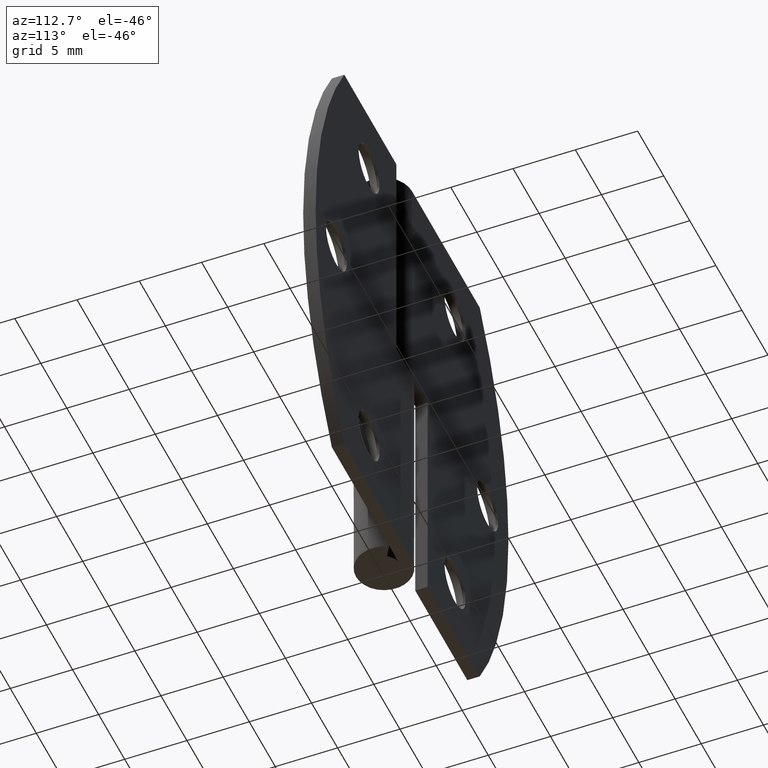
[diagram: clean part render]
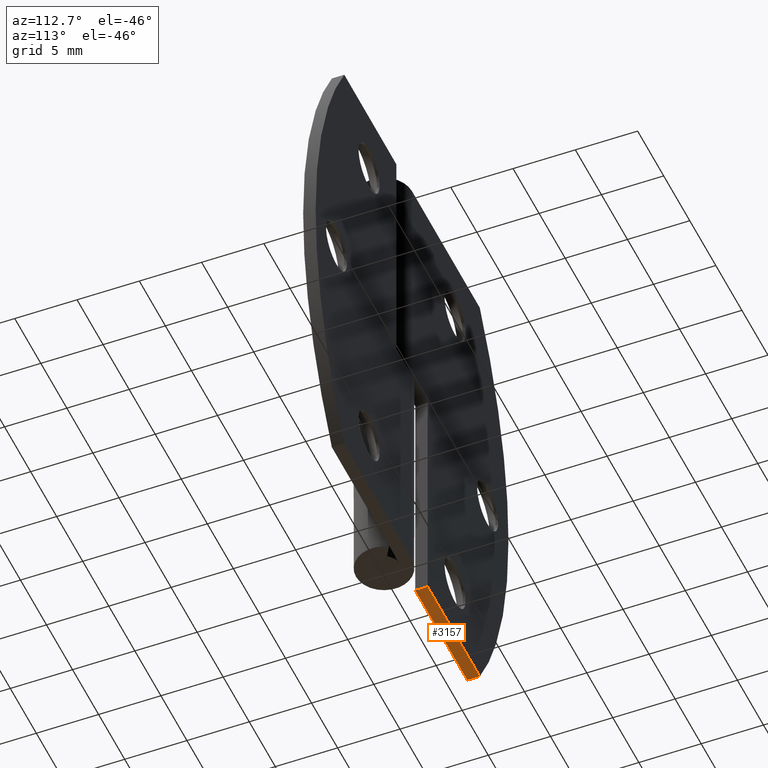
[diagram: same view with one face highlighted and labeled with its STEP entity id]
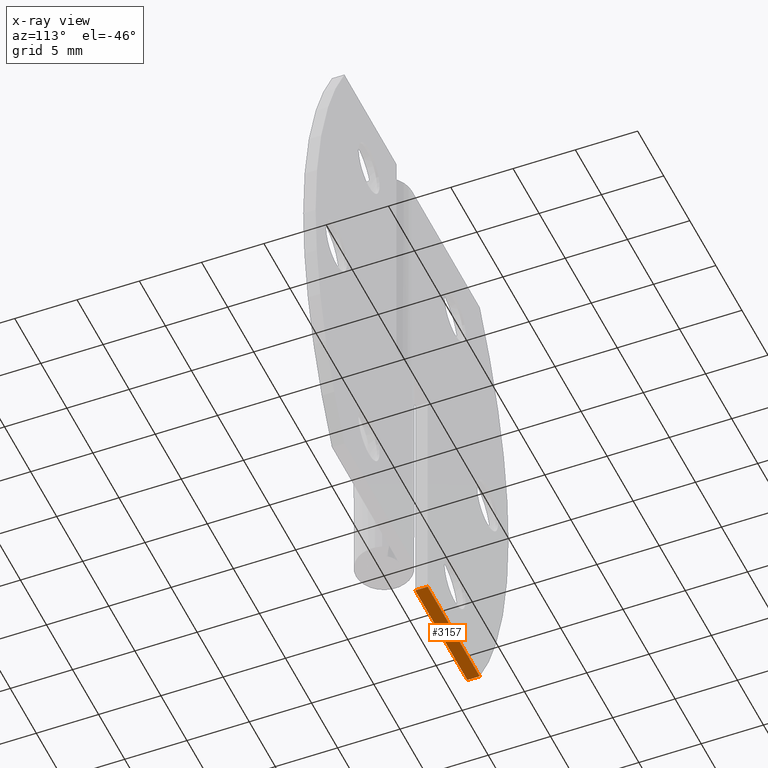
[diagram: x-ray of the same camera — body ghosted, the highlighted face saturated]
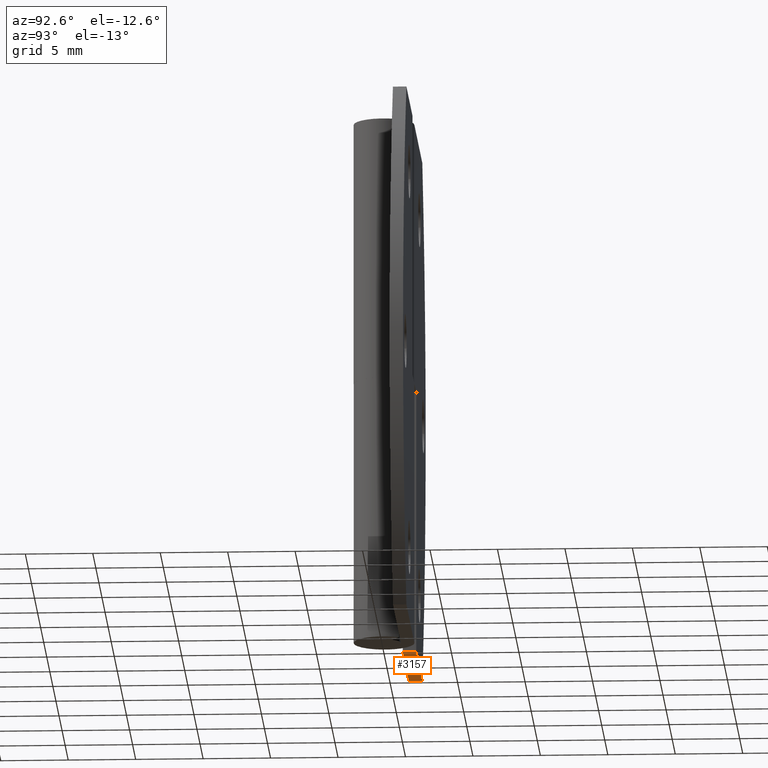
[diagram: same view with one face highlighted and labeled with its STEP entity id]
A machine part, auxiliary view. The second image highlights one B-rep face of the part: STEP entity #3157.
The next image is the same camera in x-ray: the body ghosted, the highlighted face saturated — about 0% of this face is hidden behind the body in this view.
A second angle (auxiliary view) of the same face is appended — the face is thin or edge-on in the first view.
In plain terms, the highlighted face is a freeform B-spline surface patch.
Its self-contained STEP definition (entity closure, byte-faithful):
#2908=CARTESIAN_POINT('',(-3.0,1.250000000000000,0.0));
#2909=VERTEX_POINT('',#2908);
#2915=CARTESIAN_POINT('',(-3.0,2.249999999999975,0.0));
#2916=VERTEX_POINT('',#2915);
#2917=CARTESIAN_POINT('',(-3.0,1.250000000000000,0.0));
#2918=CARTESIAN_POINT('',(-3.0,2.249999999999975,0.0));
#2919=QUASI_UNIFORM_CURVE('',1,(#2917,#2918),.UNSPECIFIED.,.F.,.U.);
#2920=EDGE_CURVE('',#2909,#2916,#2919,.T.);
#3023=CARTESIAN_POINT('',(-12.999995047973600,2.249999999999975,0.0));
#3024=VERTEX_POINT('',#3023);
#3038=CARTESIAN_POINT('',(-12.999995047973600,1.249999999999972,0.0));
#3039=VERTEX_POINT('',#3038);
#3040=CARTESIAN_POINT('',(-12.999995047973600,1.249999999999972,0.0));
#3041=CARTESIAN_POINT('',(-12.999995047973600,2.249999999999975,0.0));
#3042=QUASI_UNIFORM_CURVE('',1,(#3040,#3041),.UNSPECIFIED.,.F.,.U.);
#3043=EDGE_CURVE('',#3039,#3024,#3042,.T.);
#3138=CARTESIAN_POINT('',(-13.499494968983550,1.200050001938166,0.0));
#3139=CARTESIAN_POINT('',(-2.500499989583130,1.200050001938166,0.0));
#3140=CARTESIAN_POINT('',(-13.499494968983550,2.299950024883871,0.0));
#3141=CARTESIAN_POINT('',(-2.500499989583130,2.299950024883871,0.0));
#3142=B_SPLINE_SURFACE_WITH_KNOTS('',1,1,((#3138,#3140),(#3139,#3141)),.UNSPECIFIED.,.F.,.F.,.U.,(2,2),(2,2),(0.0,10.998994979400420),(0.041708334948495,0.958291687403247),.UNSPECIFIED.);
#3143=CARTESIAN_POINT('',(-3.0,2.249999999999975,0.0));
#3144=CARTESIAN_POINT('',(-12.999995047973600,2.249999999999975,0.0));
#3145=QUASI_UNIFORM_CURVE('',1,(#3143,#3144),.UNSPECIFIED.,.F.,.U.);
#3146=EDGE_CURVE('',#2916,#3024,#3145,.T.);
#3147=ORIENTED_EDGE('',*,*,#3146,.F.);
#3148=ORIENTED_EDGE('',*,*,#2920,.F.);
#3149=CARTESIAN_POINT('',(-12.999995047973600,1.249999999999972,0.0));
#3150=CARTESIAN_POINT('',(-3.0,1.250000000000000,0.0));
#3151=QUASI_UNIFORM_CURVE('',1,(#3149,#3150),.UNSPECIFIED.,.F.,.U.);
#3152=EDGE_CURVE('',#3039,#2909,#3151,.T.);
#3153=ORIENTED_EDGE('',*,*,#3152,.F.);
#3154=ORIENTED_EDGE('',*,*,#3043,.T.);
#3155=EDGE_LOOP('',(#3147,#3148,#3153,#3154));
#3156=FACE_OUTER_BOUND('',#3155,.T.);
#3157=ADVANCED_FACE('',(#3156),#3142,.F.);